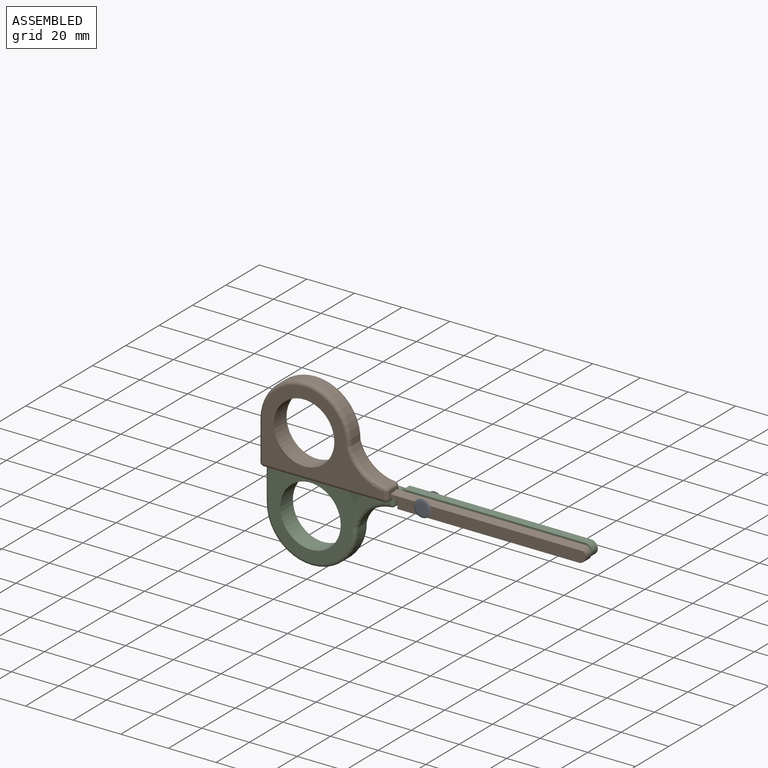
[diagram: assembled view]
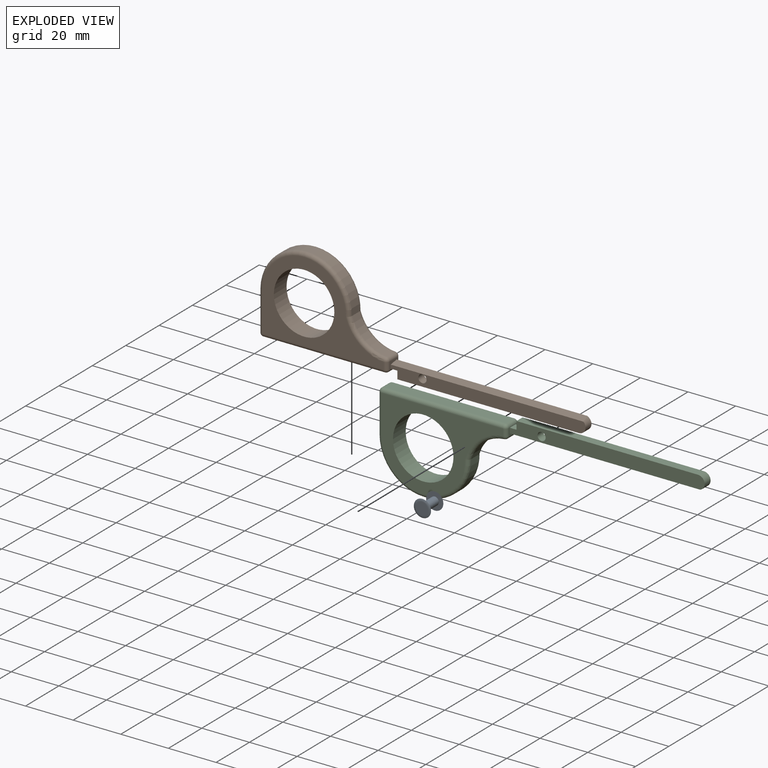
[diagram: exploded view]
GUIDED TOUR — MATED ASSEMBLY (Onshape document 511f1b8065891f4faf085a63, AutoMate assembly 511f1b8065891f4faf085a63_42a4499832cb87b436054995_1910e569c440a8f6fead8c62_default)

This assembly has 3 components, labeled P0..P2 below (a component is one placed occurrence of a part; the same part can appear more than once), held together by 1 mate. A mate is a constraint between two components; its type names the relative motion it leaves free:
  CYLINDRICAL — leaves both rotation about and translation along the listed axis free.
Axis/direction vectors are unit vectors and 'through' points are millimeter coordinates, both in the assembly's world frame.

MATES
  1. CYLINDRICAL "Cylindrical 1": P1 <-> P0, axis (0.000, 1.000, 0.000) through (-33.82, -36.54, -25.84) mm

ASSEMBLY ORDER
  1. P0 — the base component [order verified]
  2. P2 [order verified]
  3. P1 [order verified]
(P1 verified with a relaxed clearance tolerance: the source model stores slight part interference there.)
Order-tag legend:
  [order verified] — this step's position reverses a verified removal order: the component was checked to insert without passing through the ones already placed.

Of the 3 components, 2 carry the full construction recipe — the FeatureScript program that regenerates the part's solid from scratch; the rest are supplied as boundary geometry only.
Each toured component is shown spotlighted twice — in the assembled view, then in the exploded view, where a leader line traces a displaced component back to its assembled socket (saturated green if recipe-attached, orange if geometry-only; every other component desaturated gray) — followed by its recipe or geometry summary and the mates that hold it.
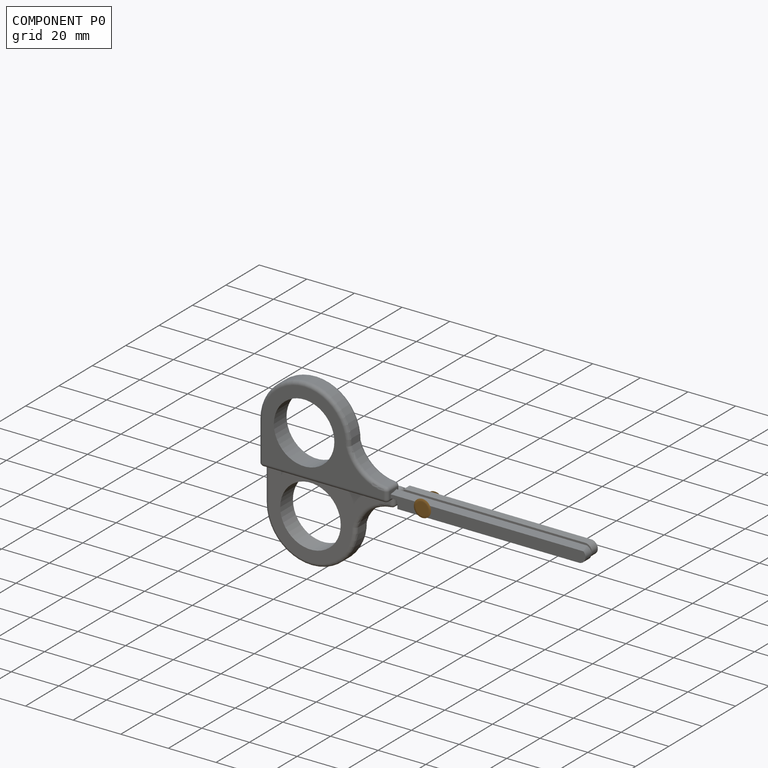
[diagram: component P0 — assembled]
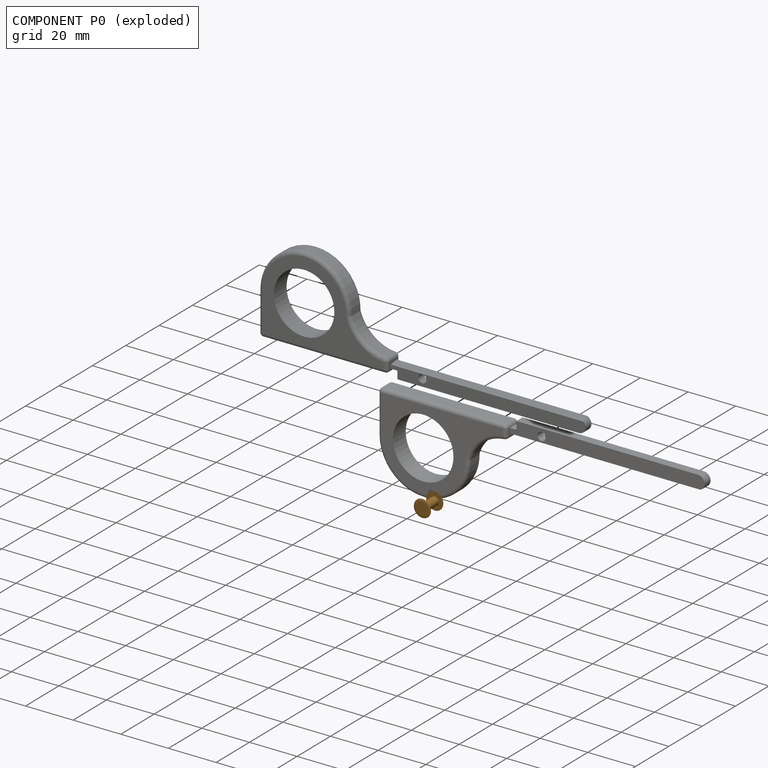
[diagram: component P0 — exploded]
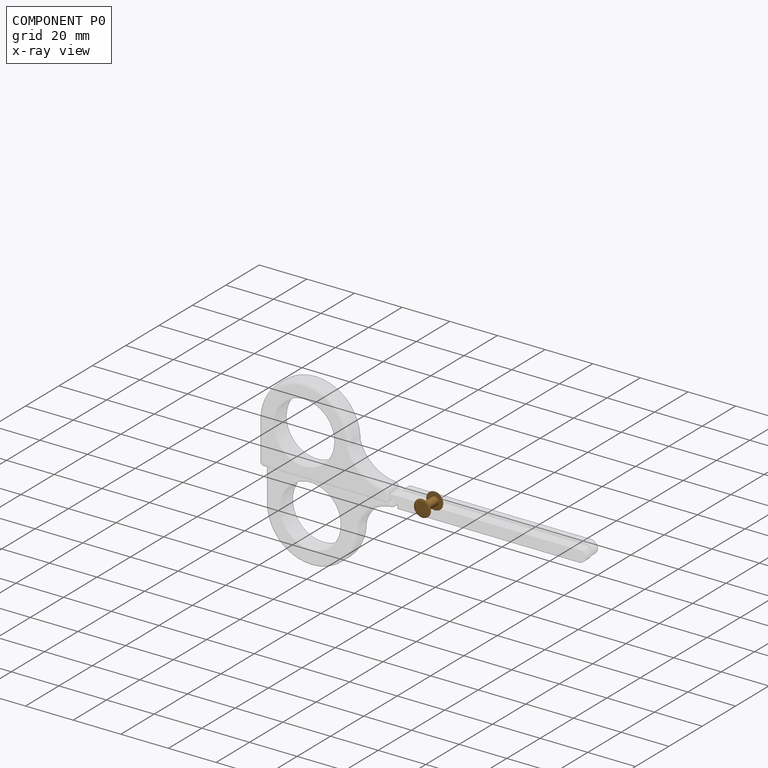
[diagram: component P0 — x-ray view]
COMPONENT P0 — geometry summary (no construction recipe available for this part):
  bounding box: 9.1 x 9.1 x 7.9 mm
  B-rep topology: 1 solid, 7 faces, 20 edges
  volume: 85 mm^3 (13% of its bounding box)
  symmetry: 2-fold rotationally symmetric about the x axis; 2-fold rotationally symmetric about the y axis; revolution-symmetric about the z axis through its bounding-box center; mirror-symmetric across its x mid-plane, y mid-plane, z mid-plane
Held by: CYLINDRICAL mate "Cylindrical 1" to P1.
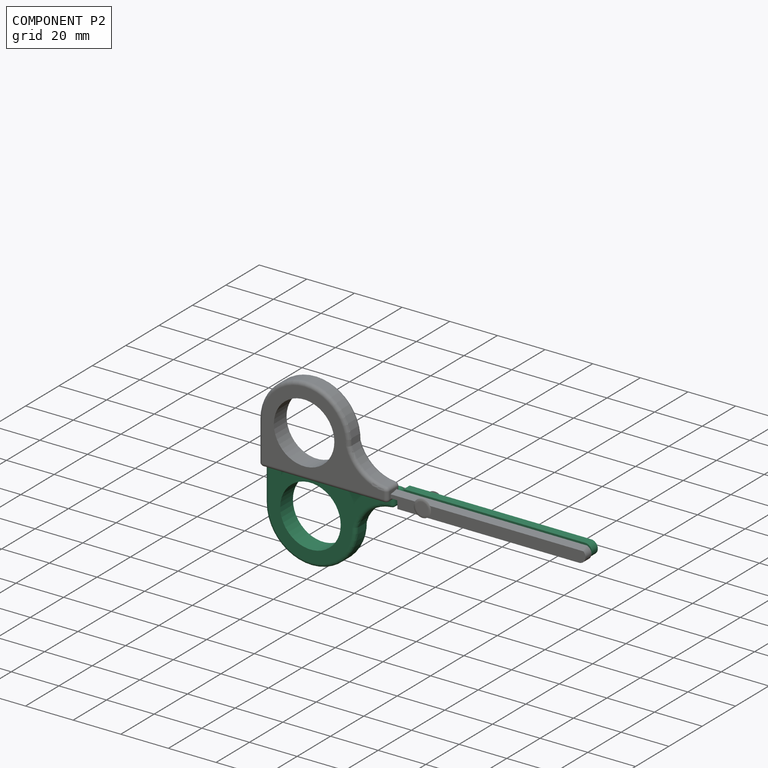
[diagram: component P2 — assembled]
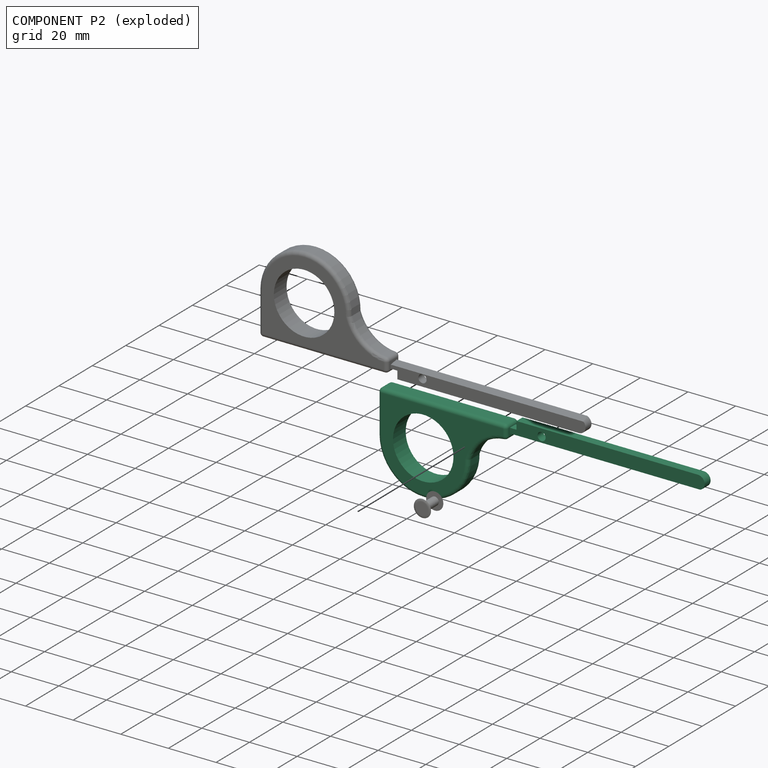
[diagram: component P2 — exploded]
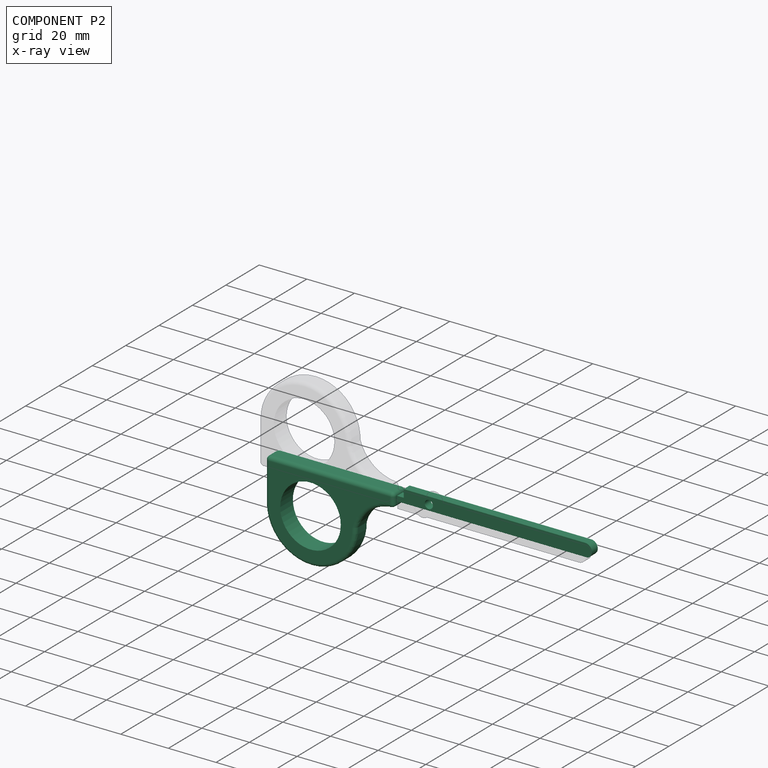
[diagram: component P2 — x-ray view]
COMPONENT P2 — same part as P1 (CADFS 00328537); its construction recipe is shown at P1.
Held by: no mates (free).
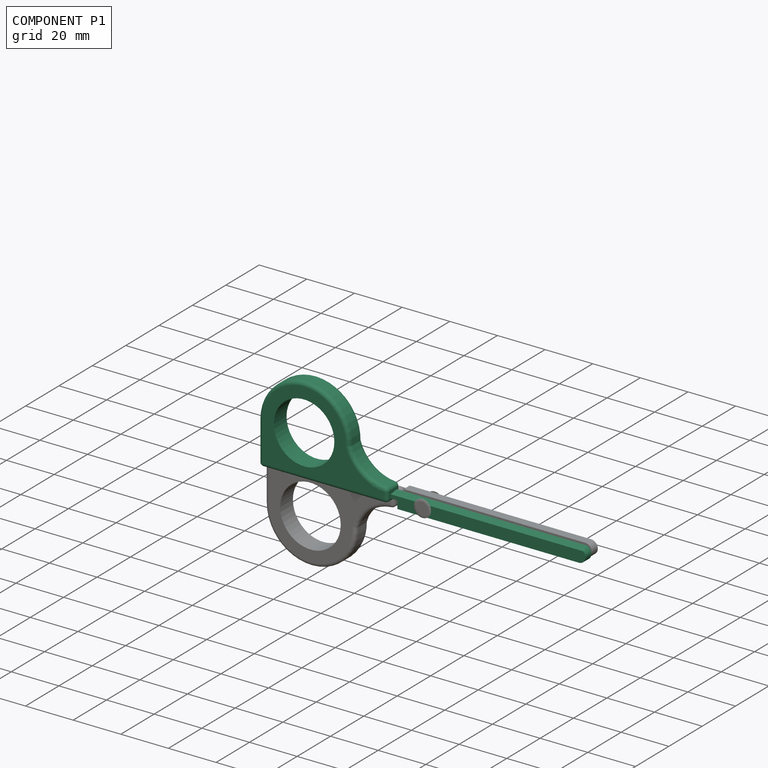
[diagram: component P1 — assembled]
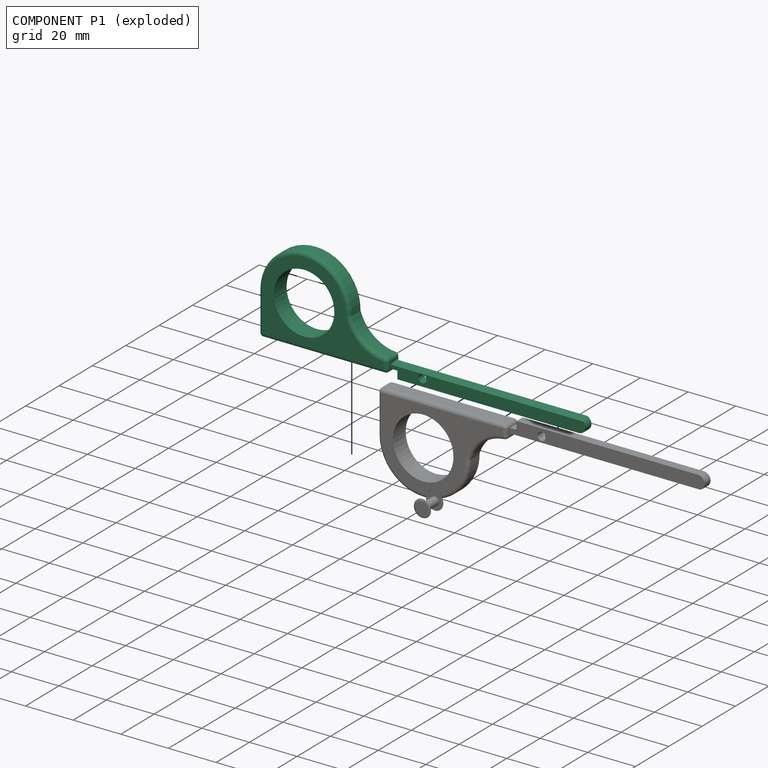
[diagram: component P1 — exploded]
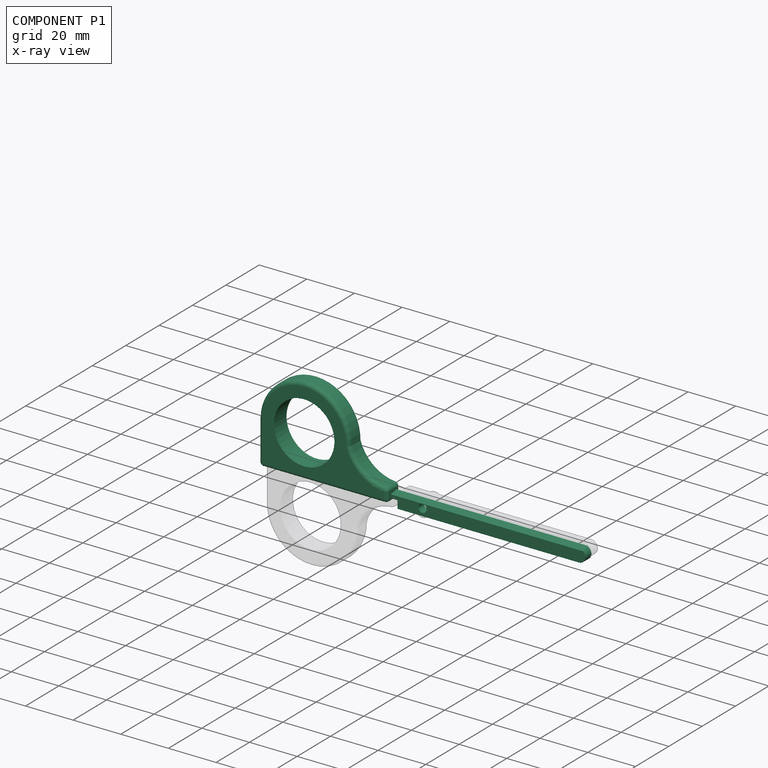
[diagram: component P1 — x-ray view]
COMPONENT P1 — recipe-attached (CADFS 00328537, mesh-verified: the recipe's output STEP matches this component's geometry to below the mesh-comparison resolution (tessellation chordal tolerance ~0.212 mm)).
Held by: CYLINDRICAL mate "Cylindrical 1" to P0.
Construction recipe (FeatureScript — the CAD program that rebuilds this solid; sketch coordinates are in the units given by the * unit suffixes, e.g. mm):

FeatureScript 1511;
import(path : "onshape/std/geometry.fs", version : "1511.0");
import(path : "onshape/std/common.fs", version : "1511.0");
const mm = millimeter;
const VERTEX = EntityType.VERTEX;
const EDGE = EntityType.EDGE;
const FACE = EntityType.FACE;
const BODY = EntityType.BODY;
function v(x, y){return vector(x, y);}
function OD(order){return orderDisambiguation(order);}
function OSD(set){return originalSetDisambiguation(set);}
function TD(topology){return topologyDisambiguation(topology);}
function TDD(query){return trueDependencyDisambiguation(query);}
function sQuery(a, b, c) {return sketchEntityQuery(a, b, c);}

annotation { "Feature Type Name" : "Feature", "Feature Type Description" : "" }
export const myFeature = defineFeature(function(context is Context, id is Id, definition is map)
    precondition{}
    {
        {
            var Q0;
            Q0=qCreatedBy(makeId("Front.planeOp"),FACE);
            var sketch = newSketch(context, id + "F0", { "sketchPlane" : qUnion([Q0])});
            skLineSegment(sketch, "E0", {"start": v(-33.84, -6.02) * mm, "end": v(17.08, -6.02) * mm});
            skLineSegment(sketch, "E1", {"start": v(18.6, -4.5) * mm, "end": v(18.6, -1.62) * mm});
            skLineSegment(sketch, "E2", {"start": v(-35.37, -4.5) * mm, "end": v(-35.37, 11.76) * mm});
            skArc(sketch, "E3", {"start": v(2.73, 11.45) * mm, "mid": v(8.2, 3.45) * mm, "end": v(17.2, -0.1) * mm});
            skArc(sketch, "E4", {"start": v(2.73, 11.45) * mm, "mid": v(-16.16, 30.8) * mm, "end": v(-35.37, 11.76) * mm});
            skCircle(sketch, "E5", {"center": v(-16.32, 11.76) * mm, "radius": 12.7 * mm});
            skPoint(sketch, "E6.visualSharp", {"position": v(18.6, -0.15) * mm});
            skArc(sketch, "E6.filletArc", {"start": v(18.6, -1.62) * mm, "mid": v(18.2, -0.59) * mm, "end": v(17.2, -0.1) * mm});
            skPoint(sketch, "E7.visualSharp", {"position": v(18.6, -6.02) * mm});
            skArc(sketch, "E7.filletArc", {"start": v(17.08, -6.02) * mm, "mid": v(18.16, -5.57) * mm, "end": v(18.6, -4.5) * mm});
            skPoint(sketch, "E8.visualSharp", {"position": v(-35.37, -6.02) * mm});
            skArc(sketch, "E8.filletArc", {"start": v(-35.37, -4.5) * mm, "mid": v(-34.92, -5.57) * mm, "end": v(-33.84, -6.02) * mm});
            skLineSegment(sketch, "E9", {"start": v(97.6, -7.8) * mm, "end": v(21.4, -7.8) * mm});
            skLineSegment(sketch, "E10", {"start": v(21.4, -7.8) * mm, "end": v(21.4, -4.5) * mm});
            skLineSegment(sketch, "E11", {"start": v(21.4, -4.5) * mm, "end": v(18.6, -4.5) * mm});
            skLineSegment(sketch, "E12", {"start": v(18.6, -2.21) * mm, "end": v(97.6, -2.21) * mm});
            skLineSegment(sketch, "E13", {"start": v(21.4, -4.5) * mm, "end": v(21.4, -4.75) * mm, "construction": true});
            skLineSegment(sketch, "E14", {"start": v(21.4, -4.75) * mm, "end": v(31.94, -4.75) * mm, "construction": true});
            skCircle(sketch, "E15", {"center": v(31.94, -4.75) * mm, "radius": 1.71 * mm});
            skArc(sketch, "E16", {"start": v(97.6, -7.8) * mm, "mid": v(100.4, -5) * mm, "end": v(97.6, -2.21) * mm});
            skSolve(sketch);
        }
        {
            var Q0;
            Q0=makeQuery(id+"F0.imprint","IMPRINT",FACE,{"disambiguationData":[TD([[makeQuery(id+"F0.imprint","IMPRINT",EDGE,{"derivedFrom":sQuery(id+"F0.wireOp",EDGE,"E9")}),-1.0]])]});
            extrude(context, id + "F1", {"entities" : qUnion([Q0]), "endBound" : BoundingType.SYMMETRIC, "depth" : 3.56 * mm});
        }
        {
            var Q0;
            Q0=makeQuery(id+"F0.imprint","IMPRINT",FACE,{"disambiguationData":[TD([[makeQuery(id+"F0.imprint","IMPRINT",EDGE,{"derivedFrom":sQuery(id+"F0.wireOp",EDGE,"E0")}),1.0]])]});
            extrude(context, id + "F2", {"entities" : qUnion([Q0]), "operationType" : NewBodyOperationType.ADD, "endBound" : BoundingType.SYMMETRIC, "depth" : 7.62 * mm});
        }
        {
            var Q0;
            Q0=makeQuery(id+"F2.opExtrude","CAP_EDGE",EDGE,{"disambiguationData":[OSD([sQuery(id+"F0.wireOp",EDGE,"E4")])],"isStart":false});
            var Q1;
            Q1=makeQuery(id+"F2.opExtrude","CAP_EDGE",EDGE,{"disambiguationData":[OSD([sQuery(id+"F0.wireOp",EDGE,"E4")])],"isStart":true});
            fillet(context, id + "F3", {"entities" : qUnion([Q0, Q1]), "radius" : 1.52 * mm, "tangentPropagation" : true, "allowEdgeOverflow" : false});
        }
        {
            var Q0;
            Q0=makeQuery(id+"F2.opExtrude","SWEPT_FACE",FACE,{"disambiguationData":[OSD([sQuery(id+"F0.wireOp",EDGE,"E1")])]});
            var sketch = newSketch(context, id + "F4", { "sketchPlane" : qUnion([Q0])});
            skPoint(sketch, "E17.endSnap0", {"position": v(0, -1.62) * mm});
            skLineSegment(sketch, "E18", {"start": v(-2.29, -3.06) * mm, "end": v(2.7, -2.21) * mm});
            skLineSegment(sketch, "E19", {"start": v(2.7, -2.21) * mm, "end": v(-2.29, -2.21) * mm});
            skLineSegment(sketch, "E20", {"start": v(-2.29, -2.21) * mm, "end": v(-2.29, -3.06) * mm});
            skSolve(sketch);
        }
        {
            var Q0;
            Q0 = qSketchRegion(id + "F4", true);
            extrude(context, id + "F5", {"entities" : qUnion([Q0]), "operationType" : NewBodyOperationType.REMOVE, "endBound" : BoundingType.THROUGH_ALL, "depth" : 25.4 * mm});
        }
        {
            var Q0;
            Q0 = qSketchRegion(id + "F4", true);
            extrude(context, id + "F6", {"entities" : qUnion([Q0]), "operationType" : NewBodyOperationType.REMOVE, "endBound" : BoundingType.THROUGH_ALL, "depth" : 25.4 * mm});
        }
    });
PROVENANCE & LICENSES
Assembly (occurrences, transforms, mates, per-part STEP geometry): AutoMate dataset, Zenodo record 7776208, CC0.
Construction recipes: CADFS (HuggingFace VladPyatov/CADFS, CC-BY-4.0, layered over the ABC dataset), FeatureScript reconstruction programs keyed by ABC model id.
Join: ABC meta listings map ABC model id -> Onshape documentId; within a shared document, parts are matched by geometric signature (bounding-box dims + volume at 0.1% relative tolerance, exact B-rep face/solid counts).
Verification: 2 of this assembly's 3 components carry a recipe attachment, and every attachment is mesh-verified: the CADFS STEP and the AutoMate member STEP were compared as meshes in their shared local frame (symmetric sampled-point-to-mesh distance); worst across the 2 attachments: below the mesh-comparison resolution (tessellation chordal tolerance ~0.212 mm) on a 141 mm part.
Renders: orthographic iso camera (az 35 / el 25); the floor grid conveys scale (grid pitch printed in each image; no ruler). In the exploded view each component is displaced by its stored offset vector: the offsets alone carry the explosion direction (mate normal/axis signs are not orientation cues and do not encode it), and separation distances are assigned per mate-chain, not proportionally to assembly-order depth.
